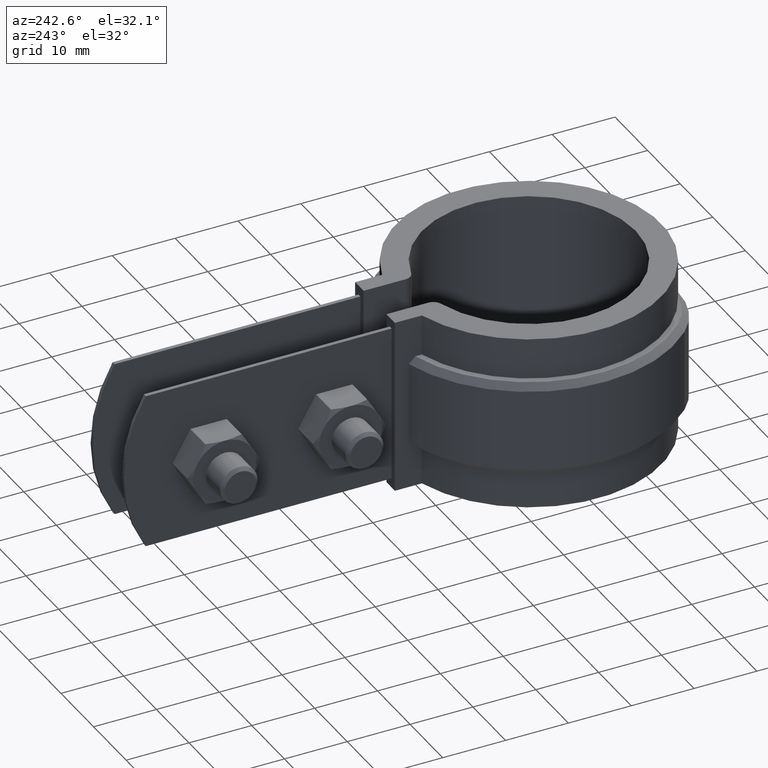
[diagram: clean part render]
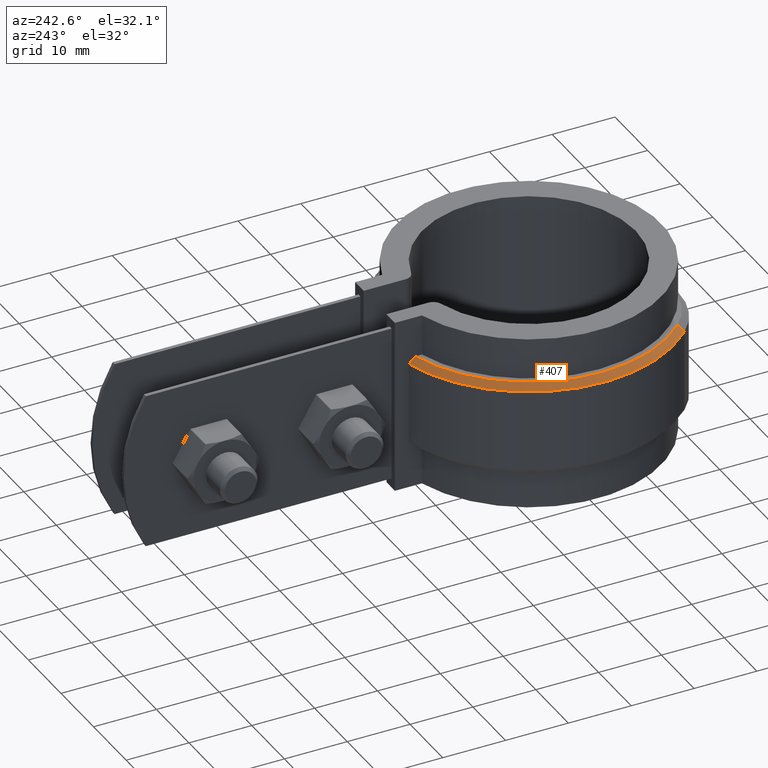
[diagram: same view with one face highlighted and labeled with its STEP entity id]
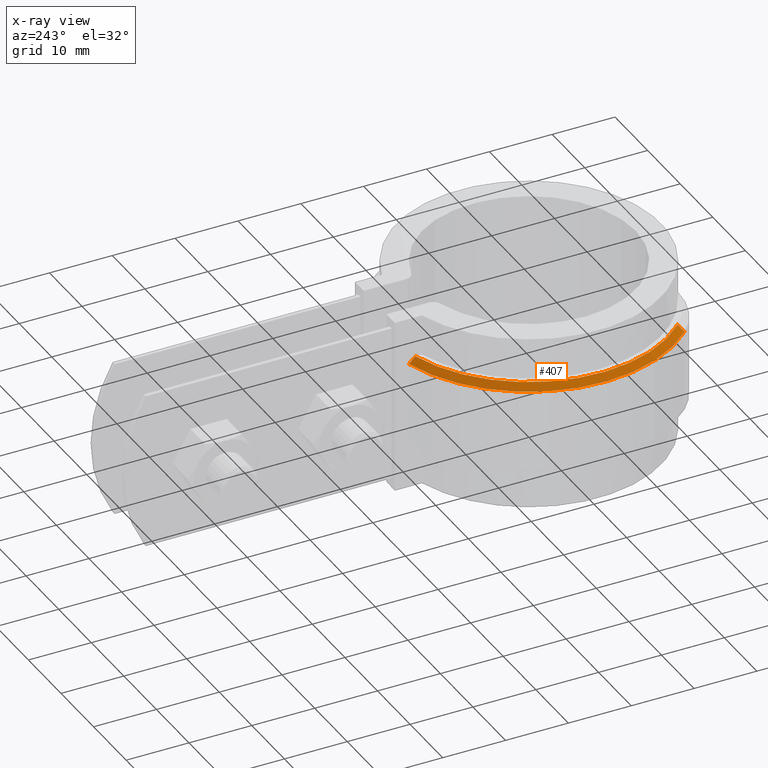
[diagram: x-ray of the same camera — body ghosted, the highlighted face saturated]
A machine part, auxiliary view. The second image highlights one B-rep face of the part: STEP entity #407.
The next image is the same camera in x-ray: the body ghosted, the highlighted face saturated — about 0% of this face is hidden behind the body in this view.
In plain terms, the highlighted conical surface has half-angle 45 deg.
Its self-contained STEP definition (entity closure, byte-faithful):
#407 = ADVANCED_FACE( '', ( #706 ), #707, .T. );
#706 = FACE_OUTER_BOUND( '', #1504, .T. );
#707 = CONICAL_SURFACE( '', #1505, 22.0950000000000, 0.785398163397447 );
#1504 = EDGE_LOOP( '', ( #3216, #3217, #3218, #3219 ) );
#1505 = AXIS2_PLACEMENT_3D( '', #3220, #3221, #3222 );
#3216 = ORIENTED_EDGE( '', *, *, #4273, .F. );
#3217 = ORIENTED_EDGE( '', *, *, #4274, .F. );
#3218 = ORIENTED_EDGE( '', *, *, #4269, .F. );
#3219 = ORIENTED_EDGE( '', *, *, #4275, .F. );
#3220 = CARTESIAN_POINT( '', ( -8.67361737988404E-016, -6.93889390390723E-015, -5.00000000000000 ) );
#3221 = DIRECTION( '', ( 0.000000000000000, 0.000000000000000, -1.00000000000000 ) );
#3222 = DIRECTION( '', ( -1.00000000000000, 0.000000000000000, 0.000000000000000 ) );
#4269 = EDGE_CURVE( '', #4978, #4979, #4980, .T. );
#4273 = EDGE_CURVE( '', #4985, #4986, #4987, .T. );
#4274 = EDGE_CURVE( '', #4979, #4985, #4988, .T. );
#4275 = EDGE_CURVE( '', #4986, #4978, #4989, .F. );
#4978 = VERTEX_POINT( '', #7440 );
#4979 = VERTEX_POINT( '', #7441 );
#4980 = LINE( '', #7442, #7443 );
#4985 = VERTEX_POINT( '', #7451 );
#4986 = VERTEX_POINT( '', #7452 );
#4987 = B_SPLINE_CURVE_WITH_KNOTS( '', 3, ( #7453, #7454, #7455, #7456 ), .UNSPECIFIED., .F., .F., ( 4, 4 ), ( 9.81307786677359E-018, 0.00144175553964642 ), .UNSPECIFIED. );
#4988 = CIRCLE( '', #7457, 23.0950000000000 );
#4989 = CIRCLE( '', #7458, 22.0950000000000 );
#7440 = CARTESIAN_POINT( '', ( -15.7021955308702, -15.5444549763033, -5.00000000000000 ) );
#7441 = CARTESIAN_POINT( '', ( -16.4128629004502, -16.2479831490258, -6.00000000000000 ) );
#7442 = CARTESIAN_POINT( '', ( -15.7021955308702, -15.5444549763033, -5.00000000000000 ) );
#7443 = VECTOR( '', #8369, 1000.00000000000 );
#7451 = CARTESIAN_POINT( '', ( -6.10000000000002, 22.2748518513592, -6.00000000000000 ) );
#7452 = CARTESIAN_POINT( '', ( -6.10000000000002, 21.2362667387655, -5.00000000000000 ) );
#7453 = CARTESIAN_POINT( '', ( -6.10000000000003, 22.2748518513592, -6.00000000000000 ) );
#7454 = CARTESIAN_POINT( '', ( -6.10000000000003, 21.9289403275758, -5.66637246391195 ) );
#7455 = CARTESIAN_POINT( '', ( -6.10000000000003, 21.5827583504448, -5.33302504133812 ) );
#7456 = CARTESIAN_POINT( '', ( -6.10000000000003, 21.2362667387655, -5.00000000000000 ) );
#7457 = AXIS2_PLACEMENT_3D( '', #8376, #8377, #8378 );
#7458 = AXIS2_PLACEMENT_3D( '', #8379, #8380, #8381 );
#8369 = DIRECTION( '', ( -0.502517716198026, -0.497469541687849, -0.707106781186549 ) );
#8376 = CARTESIAN_POINT( '', ( -8.67361737988404E-016, -6.93889390390723E-015, -6.00000000000000 ) );
#8377 = DIRECTION( '', ( 0.000000000000000, 0.000000000000000, -1.00000000000000 ) );
#8378 = DIRECTION( '', ( -1.00000000000000, 0.000000000000000, 0.000000000000000 ) );
#8379 = CARTESIAN_POINT( '', ( -8.67361737988404E-016, -6.93889390390723E-015, -5.00000000000000 ) );
#8380 = DIRECTION( '', ( 0.000000000000000, 0.000000000000000, -1.00000000000000 ) );
#8381 = DIRECTION( '', ( -1.00000000000000, 0.000000000000000, 0.000000000000000 ) );